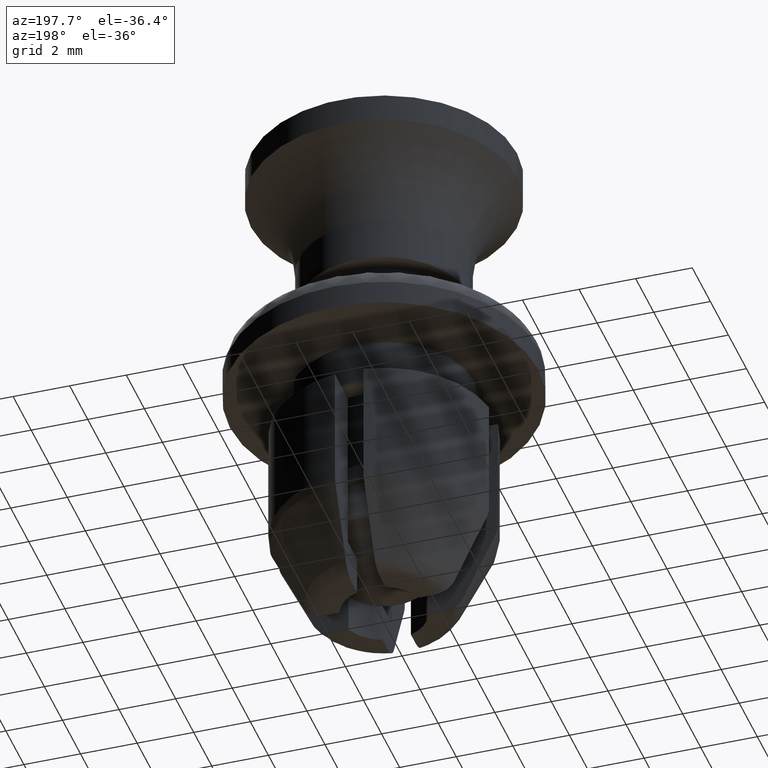
[diagram: clean part render]
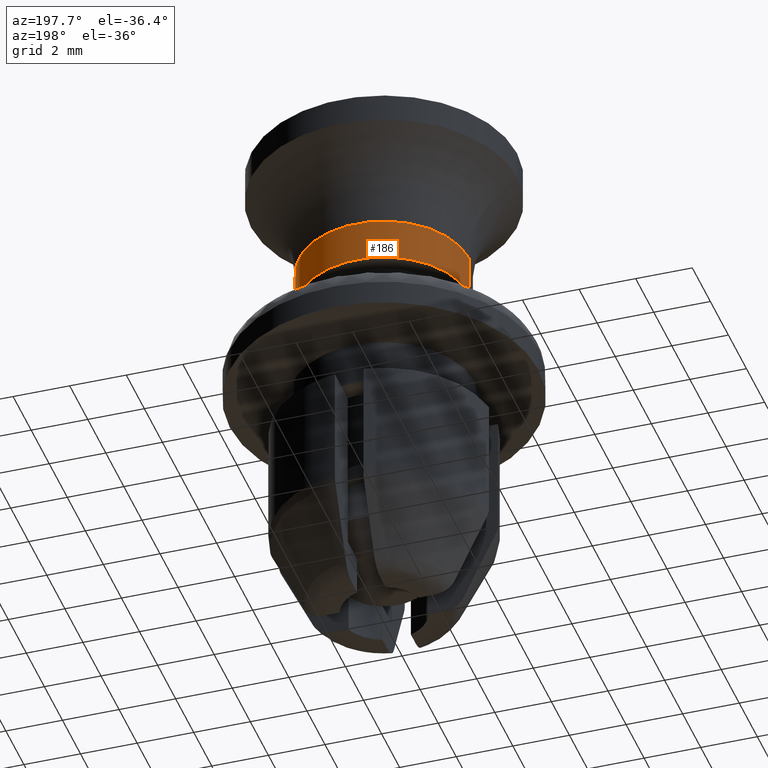
[diagram: same view with one face highlighted and labeled with its STEP entity id]
A machine part, auxiliary view. The second image highlights one B-rep face of the part: STEP entity #186.
In plain terms, the highlighted cylindrical surface (partial cylindrical patch) has radius 3 mm, axis along (0, 0, 1).
Its self-contained STEP definition (entity closure, byte-faithful):
#186=ADVANCED_FACE('',(#938),#937,.T.);
#937=CYLINDRICAL_SURFACE('',#1537,3.00000000000E+00);
#938=FACE_OUTER_BOUND('',#1538,.T.);
#1534=CARTESIAN_POINT('',(0.00000000000E+00,0.00000000000E+00,0.00000000000E+00));
#1535=DIRECTION('',(-0.00000000000E+00,-0.00000000000E+00,1.00000000000E+00));
#1536=DIRECTION('',(1.00000000000E+00,-0.00000000000E+00,-0.00000000000E+00));
#1537=AXIS2_PLACEMENT_3D('',#1534,#1535,#1536);
#1538=EDGE_LOOP('',(#1974,#1975,#1976,#1977));
#1974=ORIENTED_EDGE('',*,*,#2186,.T.);
#1975=ORIENTED_EDGE('',*,*,#2187,.F.);
#1976=ORIENTED_EDGE('',*,*,#2158,.F.);
#1977=ORIENTED_EDGE('',*,*,#2188,.T.);
#2158=EDGE_CURVE('',#3260,#3261,#3262,.T.);
#2186=EDGE_CURVE('',#3443,#3444,#3445,.T.);
#2187=EDGE_CURVE('',#3261,#3444,#3451,.T.);
#2188=EDGE_CURVE('',#3260,#3443,#3457,.T.);
#3260=VERTEX_POINT('',#4197);
#3261=VERTEX_POINT('',#4198);
#3262=CIRCLE('',#4202,3.00000000000E+00);
#3443=VERTEX_POINT('',#4298);
#3444=VERTEX_POINT('',#4299);
#3445=CIRCLE('',#4303,3.00000000000E+00);
#3451=(BOUNDED_CURVE() B_SPLINE_CURVE(1,(#4304,#4305),.UNSPECIFIED.,.F.,.F.) B_SPLINE_CURVE_WITH_KNOTS((2,2),(8.33333134656E-02,9.16666653270E-01),.UNSPECIFIED.) CURVE() GEOMETRIC_REPRESENTATION_ITEM() RATIONAL_B_SPLINE_CURVE((1.00000000000E+00,1.00000000000E+00)) REPRESENTATION_ITEM('') );
#3457=(BOUNDED_CURVE() B_SPLINE_CURVE(1,(#4306,#4307),.UNSPECIFIED.,.F.,.F.) B_SPLINE_CURVE_WITH_KNOTS((2,2),(8.33333333333E-02,9.16666666667E-01),.UNSPECIFIED.) CURVE() GEOMETRIC_REPRESENTATION_ITEM() RATIONAL_B_SPLINE_CURVE((7.50000000000E-01,7.50000000000E-01)) REPRESENTATION_ITEM('') );
#4197=CARTESIAN_POINT('',(-3.00000000000E+00,0.00000000000E+00,0.00000000000E+00));
#4198=CARTESIAN_POINT('',(3.00000000000E+00,-1.48029736617E-16,0.00000000000E+00));
#4199=CARTESIAN_POINT('',(0.00000000000E+00,0.00000000000E+00,0.00000000000E+00));
#4200=DIRECTION('',(-0.00000000000E+00,0.00000000000E+00,-1.00000000000E+00));
#4201=DIRECTION('',(-1.00000000000E+00,-1.22460635382E-16,0.00000000000E+00));
#4202=AXIS2_PLACEMENT_3D('',#4199,#4200,#4201);
#4298=CARTESIAN_POINT('',(-3.00000000000E+00,0.00000000000E+00,1.49800000000E+00));
#4299=CARTESIAN_POINT('',(3.00000000000E+00,-1.48029736617E-16,1.49800000000E+00));
#4300=CARTESIAN_POINT('',(0.00000000000E+00,0.00000000000E+00,1.49800000000E+00));
#4301=DIRECTION('',(-0.00000000000E+00,0.00000000000E+00,-1.00000000000E+00));
#4302=DIRECTION('',(-1.00000000000E+00,-1.22460635382E-16,0.00000000000E+00));
#4303=AXIS2_PLACEMENT_3D('',#4300,#4301,#4302);
#4304=CARTESIAN_POINT('',(3.00000000000E+00,0.00000000000E+00,-3.57142043439E-08));
#4305=CARTESIAN_POINT('',(3.00000000000E+00,0.00000000000E+00,1.49799997592E+00));
#4306=CARTESIAN_POINT('',(-3.00000000000E+00,-1.48029736617E-16,3.70074341542E-17));
#4307=CARTESIAN_POINT('',(-3.00000000000E+00,-1.48029736617E-16,1.49800000000E+00));